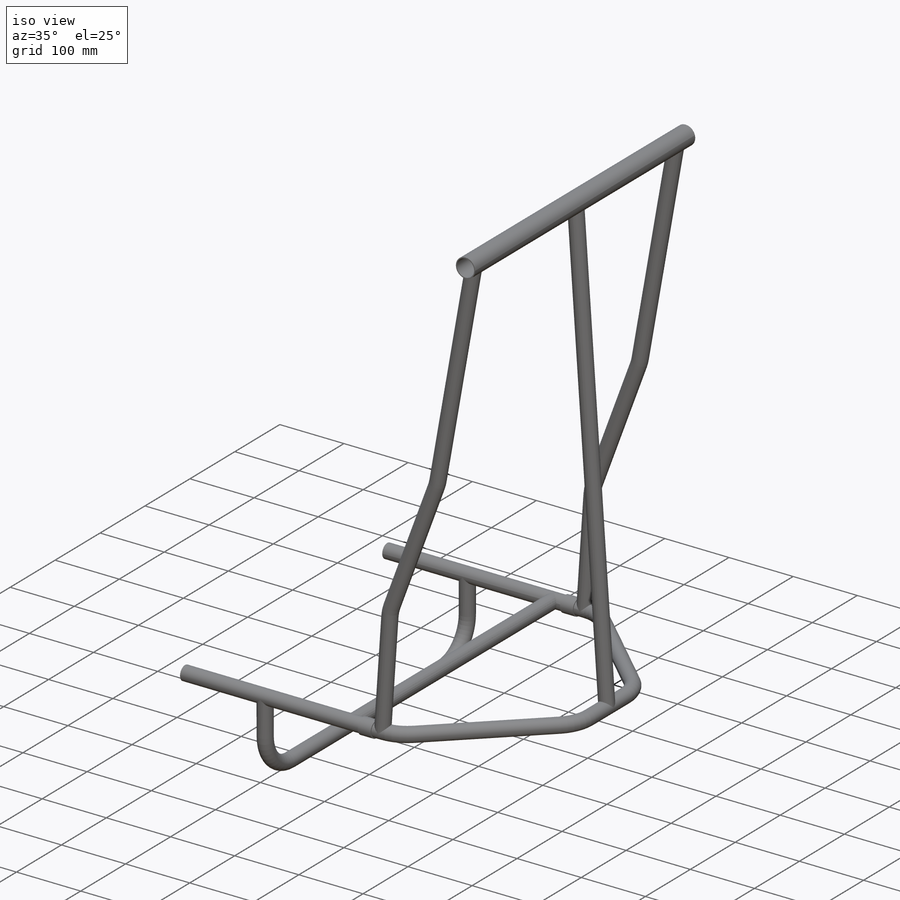
[diagram: iso view]
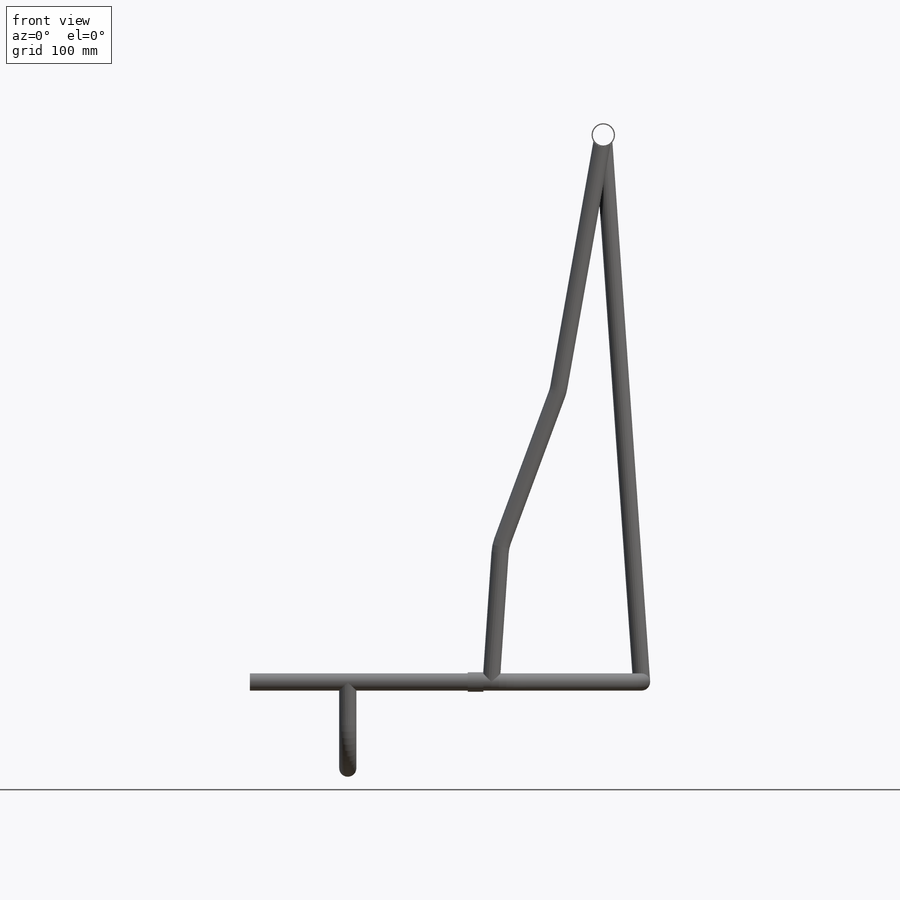
[diagram: front view]
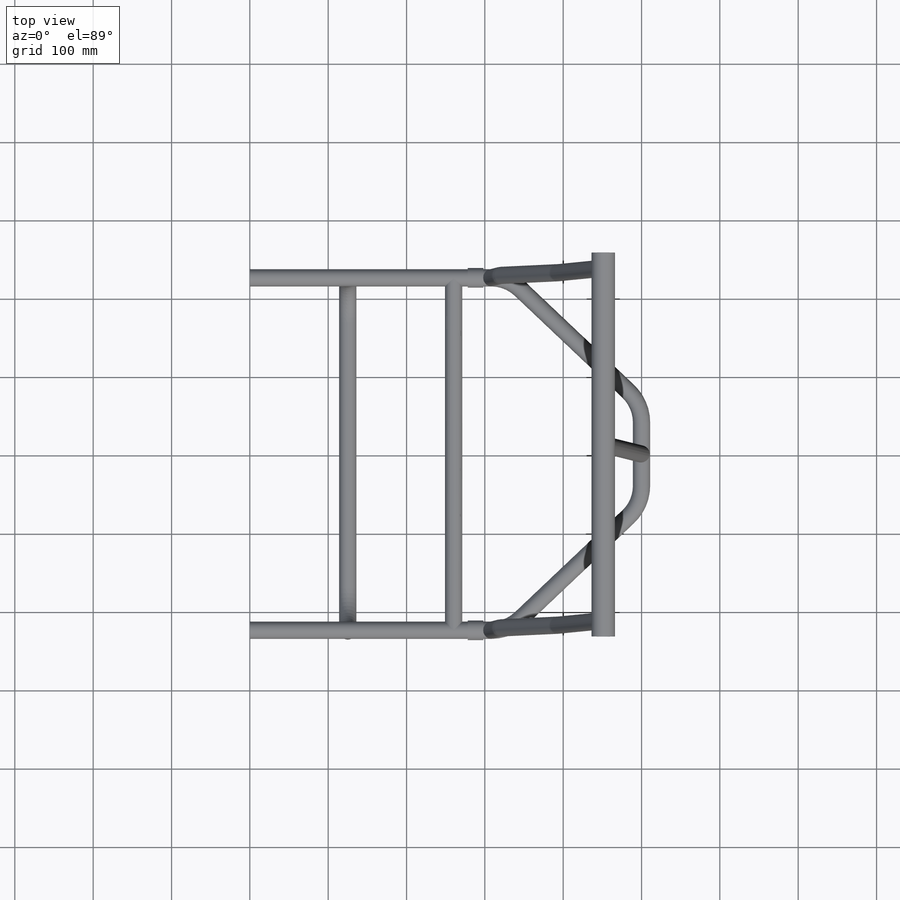
[diagram: top view]
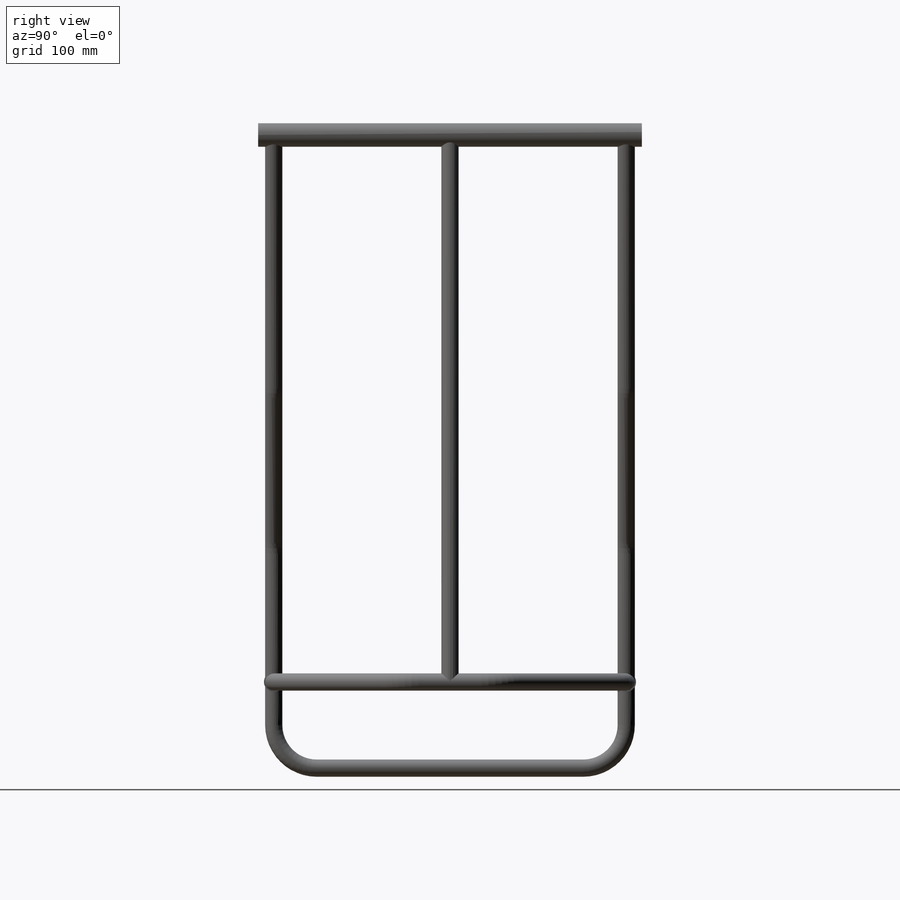
[diagram: right view]
SOLIDWORKS PART (.sldprt)
format: sldprt  version: not decoded by parser v0  size: 614,912 bytes
history: native  units: mm
features: sketch x12, plane x9, mirror x5, boolean_combine x5, material x1, extrude x1 (+11 scaffold rows collapsed)
feature tree (44):
  scaffold x11  (default folders/planes/origin — collapsed)
  material  "AISI 304"
  sketch  "Sketch1"  dims[D5=55.0mm D1=225.0mm D2=64.0mm D3=330.0mm D4=500.0mm]
  plane  "Plane5"
  sketch  "Sketch14"  dims[c1.D1=~137.48693mm c2.D1=86.0deg c2.D2=700.0mm]
  plane  "Plane6"
  sketch  "Sketch15"  dims[D1=245.0mm]
  sketch  "Sketch16"  dims[c1.D3=55.0mm c1.D1=173.0mm c1.D2=332.0mm c2.D3=~198.342766mm]
  plane  "Plane10"
  sketch  "Sketch19"  dims[In_dia=19.0mm Out_dia=22.0mm]
  mirror  "Mirror2"
  boolean_combine  "Combine5"
  plane  "Plane11"
  sketch  "Sketch110"  dims[In_dia=13.0mm Out_dia=30.0mm D1=1.5mm]
  mirror  "Mirror3"
  plane  "Plane12"
  sketch  "Sketch111"  dims[In_dia=19.0mm Out_dia=22.0mm]
  boolean_combine  "Trim/Extend3"
  boolean_combine  "Trim/Extend4"
  plane  "Plane13"  Offset=125mm
  sketch  "Sketch112"  dims[D2=55.0mm D1=110.0mm]
  plane  "Plane14"
  sketch  "Sketch113"  dims[In_dia=19.0mm Out_dia=22.0mm]
  boolean_combine  "Trim/Extend5"
  mirror  "Mirror4"
  plane  "Plane15"
  sketch  "Sketch114"  dims[D1=~13.082138mm]
  extrude  "FORCE 10k N 105deg. top"  Depth=20mm
  mirror  "Mirror5"
  sketch  "3DSketch1"
  plane  "Plane16"
  sketch  "Sketch115"  dims[In_dia=19.0mm Out_dia=22.0mm]
  mirror  "Mirror6"
  boolean_combine  "Trim/Extend6"
decode coverage: 12 of 23 modeling features carry decoded parameters
note: ~ marks probable driven/reference dimensions
note: suppression state not decoded; provenance and decode notes live in map.json
